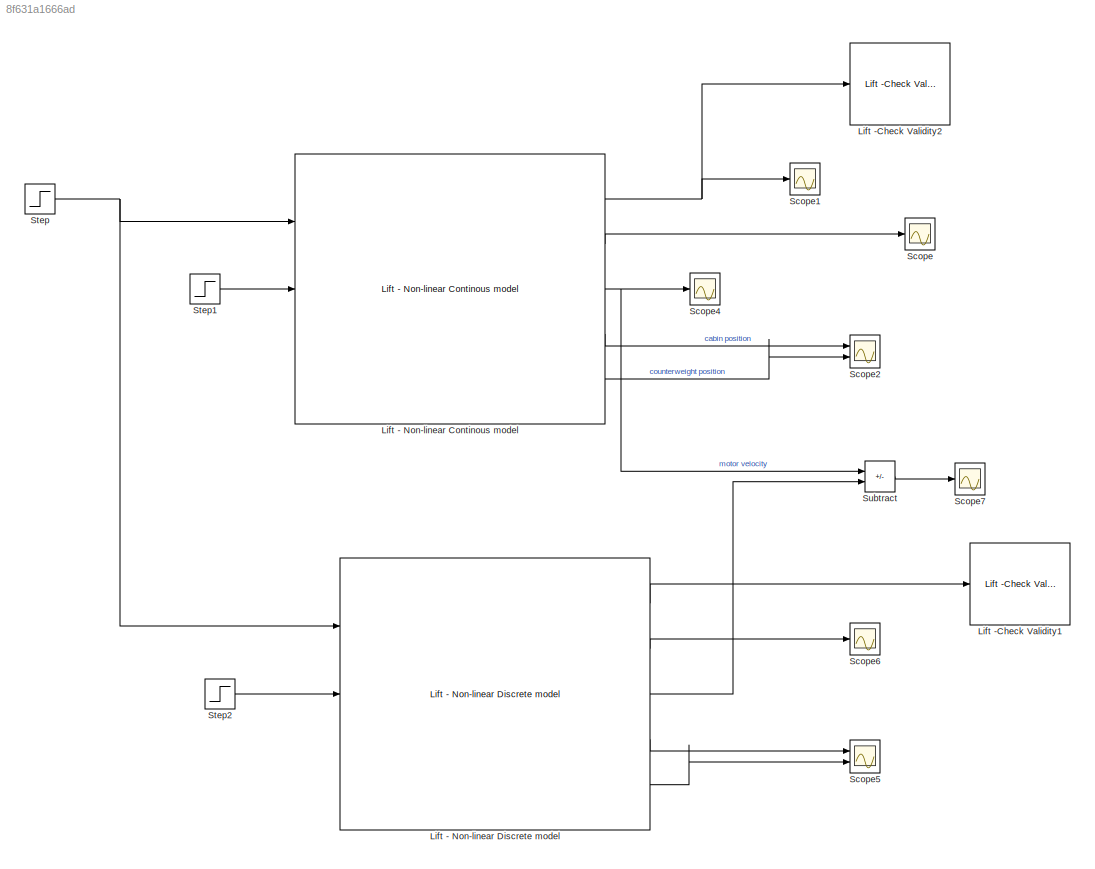
MODEL slx_8f631a1666ad
KIND model
CONFIG AbsTol = auto
CONFIG EnableMultiTasking = off
CONFIG FixedStep = auto
CONFIG MaxStep = 1e-3
CONFIG MinStep = auto
CONFIG RelTol = 1e-3
CONFIG SampleTimeConstraint = Unconstrained
CONFIG SolverName = VariableStepAuto
CONFIG StartTime = 0.0
CONFIG StopTime = 200
BLOCK [Reference] Lift - Non-linear Continous model  REF=LumpedParameterLiftModels/Lift - Non-linear Continous model
  Ports = [3, 5]
  SourceBlock = LumpedParameterLiftModels/Lift - Non-linear Continous model
BLOCK [Reference] Lift - Non-linear Discrete model  REF=LumpedParameterLiftModels/Lift - Non-linear Discrete model
  Ports = [3, 5]
  SourceBlock = LumpedParameterLiftModels/Lift - Non-linear Discrete model
BLOCK [Reference] Lift -Check Validity1  REF=LumpedParameterLiftModels/Lift -Check Validity
  Ports = [1]
  SourceBlock = LumpedParameterLiftModels/Lift -Check Validity
BLOCK [Reference] Lift -Check Validity2  REF=LumpedParameterLiftModels/Lift -Check Validity
  Ports = [1]
  SourceBlock = LumpedParameterLiftModels/Lift -Check Validity
BLOCK [Scope] Scope
  Floating = off
  NumInputPorts = 1
  Ports = [1]
  ScopeSpecificationString = Simulink.scopes.TimeScopeBlockCfg('CurrentConfiguration', extmgr.ConfigurationSet(extmgr.Configuration('Core','General UI',true),extmgr.Configuration('Core','Source UI',true),extmgr.Configuration('Sources','WiredSimulink',true),extmgr.Configuration('Visuals','Time Domain',true,'SerializedDisplays',{struct('MinYLimReal','-155.85938','MaxYLimReal','1402.73438','YLabelReal','','MinYLimMag',' 0.00000'...<+1441ch>
BLOCK [Scope] Scope1
  Floating = off
  NumInputPorts = 1
  Ports = [1]
  ScopeSpecificationString = Simulink.scopes.TimeScopeBlockCfg('CurrentConfiguration', extmgr.ConfigurationSet(extmgr.Configuration('Core','General UI',true),extmgr.Configuration('Core','Source UI',true),extmgr.Configuration('Sources','WiredSimulink',true,'DataLoggingVariableName','ScopeData1'),extmgr.Configuration('Visuals','Time Domain',true,'SerializedDisplays',{struct('MinYLimReal','-283.34091','MaxYLimReal','429.14365','...<+1901ch>
BLOCK [Scope] Scope2
  Floating = off
  NumInputPorts = 2
  Ports = [2]
  ScopeSpecificationString = Simulink.scopes.TimeScopeBlockCfg('CurrentConfiguration', extmgr.ConfigurationSet(extmgr.Configuration('Core','General UI',true),extmgr.Configuration('Core','Source UI',true),extmgr.Configuration('Sources','WiredSimulink',true,'DataLoggingVariableName','ScopeData2'),extmgr.Configuration('Visuals','Time Domain',true,'SerializedDisplays',{struct('MinYLimReal','-7.68055','MaxYLimReal','69.03741','YLa...<+2052ch>
BLOCK [Scope] Scope4
  Floating = off
  NumInputPorts = 1
  Ports = [1]
  ScopeSpecificationString = Simulink.scopes.TimeScopeBlockCfg('CurrentConfiguration', extmgr.ConfigurationSet(extmgr.Configuration('Core','General UI',true),extmgr.Configuration('Core','Source UI',true),extmgr.Configuration('Sources','WiredSimulink',true,'DataLoggingVariableName','ScopeData2'),extmgr.Configuration('Visuals','Time Domain',true,'SerializedDisplays',{struct('MinYLimReal','-31176.0169','MaxYLimReal','30311.81851...<+1488ch>
BLOCK [Scope] Scope5
  Floating = off
  NumInputPorts = 2
  Ports = [2]
  ScopeSpecificationString = Simulink.scopes.TimeScopeBlockCfg('CurrentConfiguration', extmgr.ConfigurationSet(extmgr.Configuration('Core','General UI',true),extmgr.Configuration('Core','Source UI',true),extmgr.Configuration('Sources','WiredSimulink',true,'DataLoggingVariableName','ScopeData1'),extmgr.Configuration('Visuals','Time Domain',true,'SerializedDisplays',{struct('MinYLimReal','-7.21213','MaxYLimReal','64.82155','YLa...<+2084ch>
BLOCK [Scope] Scope6
  Floating = off
  NumInputPorts = 1
  Ports = [1]
  ScopeSpecificationString = Simulink.scopes.TimeScopeBlockCfg('CurrentConfiguration', extmgr.ConfigurationSet(extmgr.Configuration('Core','General UI',true),extmgr.Configuration('Core','Source UI',true),extmgr.Configuration('Sources','WiredSimulink',true,'DataLoggingVariableName','ScopeData2'),extmgr.Configuration('Visuals','Time Domain',true,'SerializedDisplays',{struct('MinYLimReal','-152.12342','MaxYLimReal','1369.11078',...<+1480ch>
BLOCK [Scope] Scope7
  Floating = off
  NumInputPorts = 1
  Ports = [1]
  ScopeSpecificationString = Simulink.scopes.TimeScopeBlockCfg('CurrentConfiguration', extmgr.ConfigurationSet(extmgr.Configuration('Core','General UI',true),extmgr.Configuration('Core','Source UI',true),extmgr.Configuration('Sources','WiredSimulink',true,'DataLoggingVariableName','ScopeData3'),extmgr.Configuration('Visuals','Time Domain',true,'SerializedDisplays',{struct('MinYLimReal','-0.00258','MaxYLimReal','0.01753','YLab...<+1442ch>
BLOCK [Step] Step
  After = u_test
  Before = u_eq
  SampleTime = 0
  Time = 100
BLOCK [Step] Step1
  After = 0
  SampleTime = 0
  Time = 20
BLOCK [Step] Step2
  After = 0
  SampleTime = 0
  Time = 20
BLOCK [Sum] Subtract
  IconShape = rectangular
  Inputs = +-
  Ports = [2, 1]
NET Lift - Non-linear Continous model:1 -> Lift -Check Validity2:1, Scope1:1
LINE Lift - Non-linear Continous model:2 -> Scope:1
NET Lift - Non-linear Continous model:3 -> Scope4:1, Subtract:1
LINE Lift - Non-linear Continous model:4 -> Scope2:1
LINE Lift - Non-linear Continous model:5 -> Scope2:2
LINE Lift - Non-linear Discrete model:1 -> Lift -Check Validity1:1
LINE Lift - Non-linear Discrete model:2 -> Scope6:1
LINE Lift - Non-linear Discrete model:3 -> Subtract:2
LINE Lift - Non-linear Discrete model:4 -> Scope5:1
LINE Lift - Non-linear Discrete model:5 -> Scope5:2
LINE Step1:1 -> Lift - Non-linear Continous model:2
LINE Step2:1 -> Lift - Non-linear Discrete model:2
NET Step:1 -> Lift - Non-linear Continous model:1, Lift - Non-linear Discrete model:1
LINE Subtract:1 -> Scope7:1
note: NET lines group one-source signal fan-out (src -> all destinations, sorted); 1:1 wires keep LINE
